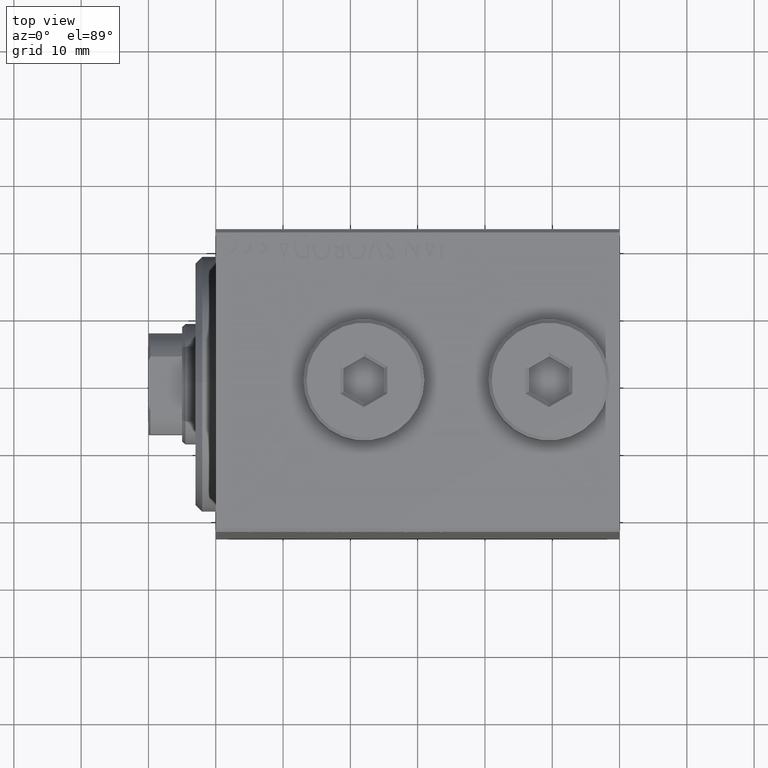
[diagram: clean part render]
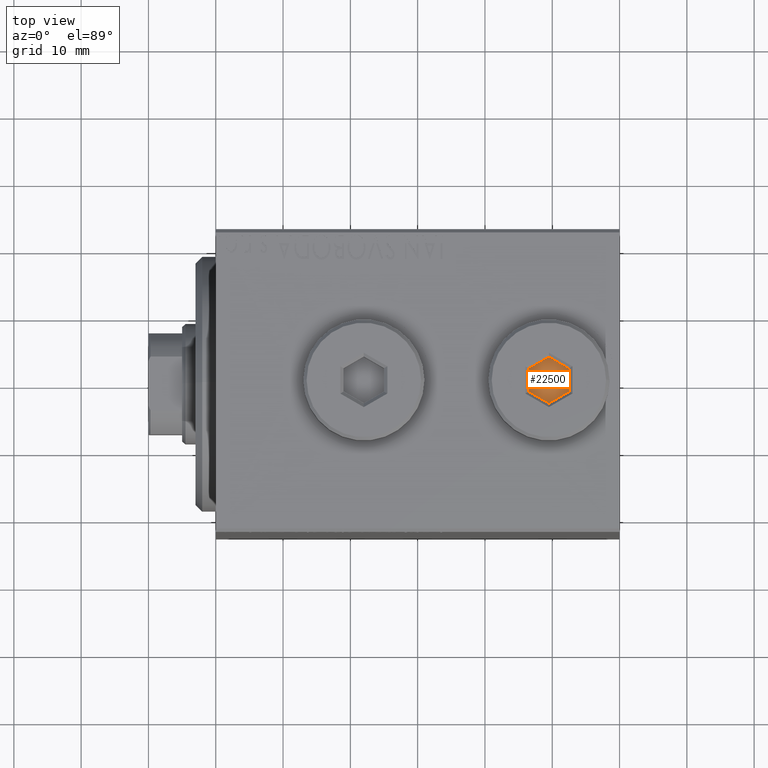
[diagram: same view with one face highlighted and labeled with its STEP entity id]
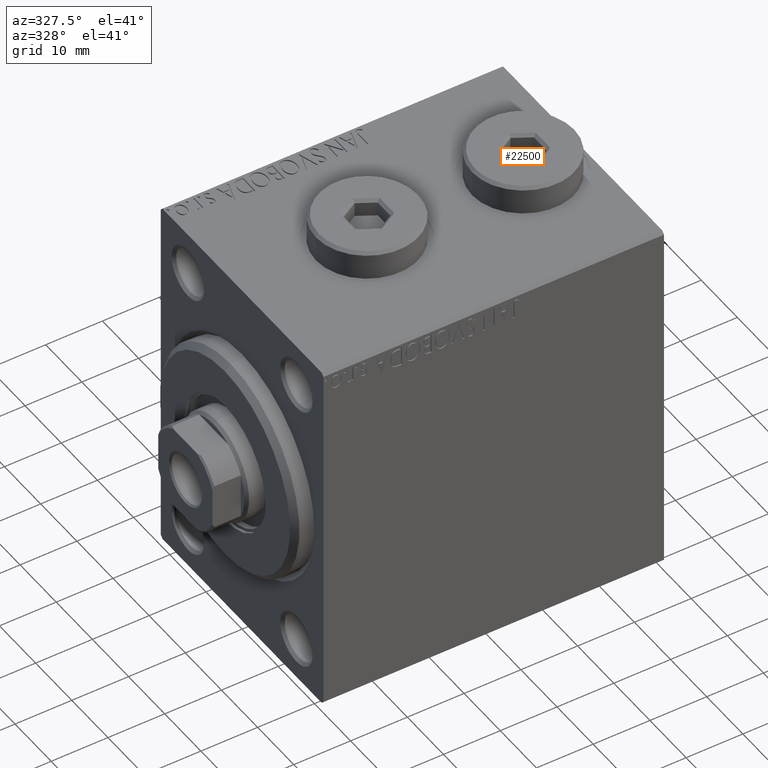
[diagram: same view with one face highlighted and labeled with its STEP entity id]
A machine part, top view. The second image highlights one B-rep face of the part: STEP entity #22500.
A second angle (auxiliary view) of the same face is appended — the face is thin or edge-on in the first view.
In plain terms, the highlighted planar face has unit normal (0, 0, 1).
Its self-contained STEP definition (entity closure, byte-faithful):
#50 = ORIENTED_EDGE ( 'NONE', *, *, #26195, .T. ) ;
#380 = CARTESIAN_POINT ( 'NONE',  ( 3.000000000000000000, 1.732050807568877859, 2.000000000000000000 ) ) ;
#1138 = VERTEX_POINT ( 'NONE', #29743 ) ;
#1287 = CARTESIAN_POINT ( 'NONE',  ( -3.000000000000000000, -1.732050807568877415, 2.000000000000000000 ) ) ;
#4078 = ORIENTED_EDGE ( 'NONE', *, *, #30287, .T. ) ;
#4107 = LINE ( 'NONE', #18168, #41941 ) ;
#6084 = EDGE_CURVE ( 'NONE', #19234, #1138, #20479, .T. ) ;
#7100 = DIRECTION ( 'NONE',  ( 0.8660254037844385966, -0.4999999999999998890, 0.000000000000000000 ) ) ;
#8384 = EDGE_LOOP ( 'NONE', ( #41370, #22528, #50, #4078, #31709, #32097 ) ) ;
#10053 = LINE ( 'NONE', #19371, #30225 ) ;
#10525 = FACE_OUTER_BOUND ( 'NONE', #8384, .T. ) ;
#12062 = DIRECTION ( 'NONE',  ( 0.8660254037844387076, 0.4999999999999998335, 0.000000000000000000 ) ) ;
#12945 = VECTOR ( 'NONE', #24622, 1000.000000000000227 ) ;
#13172 = LINE ( 'NONE', #16635, #29016 ) ;
#15969 = LINE ( 'NONE', #33495, #21415 ) ;
#16635 = CARTESIAN_POINT ( 'NONE',  ( 3.000000000000000000, -1.732050807568878303, 2.000000000000000000 ) ) ;
#18168 = CARTESIAN_POINT ( 'NONE',  ( -3.000000000000000000, -1.732050807568877415, 2.000000000000000000 ) ) ;
#19234 = VERTEX_POINT ( 'NONE', #41333 ) ;
#19371 = CARTESIAN_POINT ( 'NONE',  ( 3.000000000000000000, 1.732050807568877859, 2.000000000000000000 ) ) ;
#20479 = LINE ( 'NONE', #23709, #12945 ) ;
#21140 = DIRECTION ( 'NONE',  ( 0.000000000000000000, 0.000000000000000000, 1.000000000000000000 ) ) ;
#21415 = VECTOR ( 'NONE', #12062, 1000.000000000000000 ) ;
#21634 = VERTEX_POINT ( 'NONE', #380 ) ;
#22500 = ADVANCED_FACE ( 'NONE', ( #10525 ), #24594, .T. ) ;
#22528 = ORIENTED_EDGE ( 'NONE', *, *, #6084, .T. ) ;
#22944 = CARTESIAN_POINT ( 'NONE',  ( 3.000000000000000000, -1.732050807568878303, 2.000000000000000000 ) ) ;
#23511 = EDGE_CURVE ( 'NONE', #33031, #29045, #15969, .T. ) ;
#23709 = CARTESIAN_POINT ( 'NONE',  ( 0.000000000000000000, 3.464101615137754386, 2.000000000000000000 ) ) ;
#24293 = CARTESIAN_POINT ( 'NONE',  ( -3.000000000000000000, 1.732050807568878081, 2.000000000000000000 ) ) ;
#24594 = PLANE ( 'NONE',  #25790 ) ;
#24622 = DIRECTION ( 'NONE',  ( -0.8660254037844387076, -0.4999999999999997780, 0.000000000000000000 ) ) ;
#25790 = AXIS2_PLACEMENT_3D ( 'NONE', #38638, #21140, #35187 ) ;
#26195 = EDGE_CURVE ( 'NONE', #1138, #38818, #38798, .T. ) ;
#26708 = CARTESIAN_POINT ( 'NONE',  ( -1.288750986297053243E-16, -3.464101615137754830, 2.000000000000000000 ) ) ;
#29016 = VECTOR ( 'NONE', #45201, 1000.000000000000000 ) ;
#29045 = VERTEX_POINT ( 'NONE', #22944 ) ;
#29743 = CARTESIAN_POINT ( 'NONE',  ( -3.000000000000000000, 1.732050807568878081, 2.000000000000000000 ) ) ;
#30225 = VECTOR ( 'NONE', #33422, 1000.000000000000000 ) ;
#30287 = EDGE_CURVE ( 'NONE', #38818, #33031, #4107, .T. ) ;
#31338 = EDGE_CURVE ( 'NONE', #21634, #19234, #10053, .T. ) ;
#31709 = ORIENTED_EDGE ( 'NONE', *, *, #23511, .T. ) ;
#32097 = ORIENTED_EDGE ( 'NONE', *, *, #45578, .T. ) ;
#33031 = VERTEX_POINT ( 'NONE', #26708 ) ;
#33422 = DIRECTION ( 'NONE',  ( -0.8660254037844387076, 0.4999999999999998335, 0.000000000000000000 ) ) ;
#33495 = CARTESIAN_POINT ( 'NONE',  ( -1.288750986297053243E-16, -3.464101615137754830, 2.000000000000000000 ) ) ;
#35187 = DIRECTION ( 'NONE',  ( 1.000000000000000000, 0.000000000000000000, -0.000000000000000000 ) ) ;
#36934 = VECTOR ( 'NONE', #45483, 1000.000000000000000 ) ;
#38638 = CARTESIAN_POINT ( 'NONE',  ( 0.000000000000000000, 0.000000000000000000, 2.000000000000000000 ) ) ;
#38798 = LINE ( 'NONE', #24293, #36934 ) ;
#38818 = VERTEX_POINT ( 'NONE', #1287 ) ;
#41333 = CARTESIAN_POINT ( 'NONE',  ( 0.000000000000000000, 3.464101615137754386, 2.000000000000000000 ) ) ;
#41370 = ORIENTED_EDGE ( 'NONE', *, *, #31338, .T. ) ;
#41941 = VECTOR ( 'NONE', #7100, 1000.000000000000227 ) ;
#45201 = DIRECTION ( 'NONE',  ( 0.000000000000000000, 1.000000000000000000, 0.000000000000000000 ) ) ;
#45483 = DIRECTION ( 'NONE',  ( 0.000000000000000000, -1.000000000000000000, 0.000000000000000000 ) ) ;
#45578 = EDGE_CURVE ( 'NONE', #29045, #21634, #13172, .T. ) ;